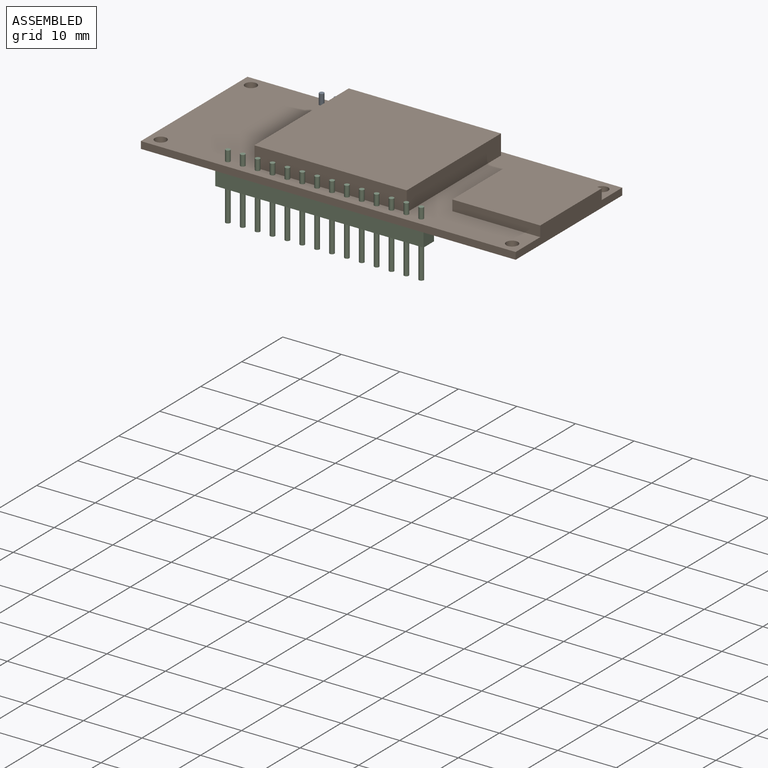
[diagram: assembled view]
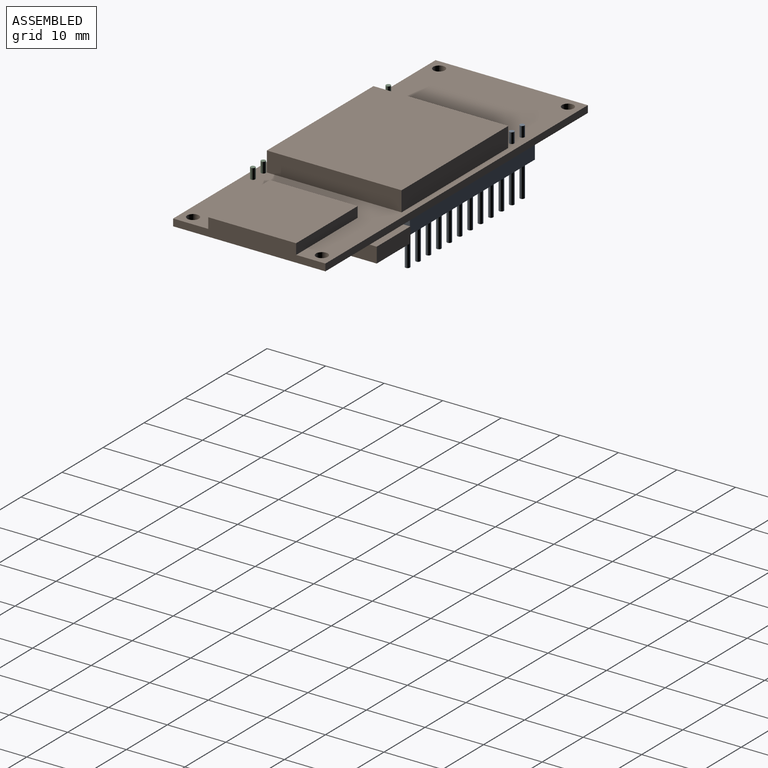
[diagram: assembled view, second angle]
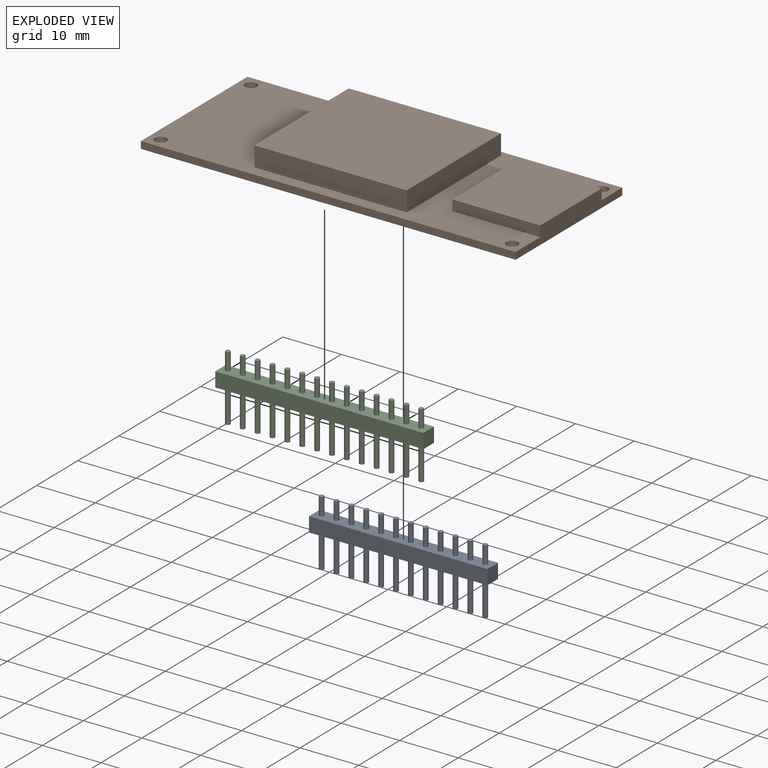
[diagram: exploded view]
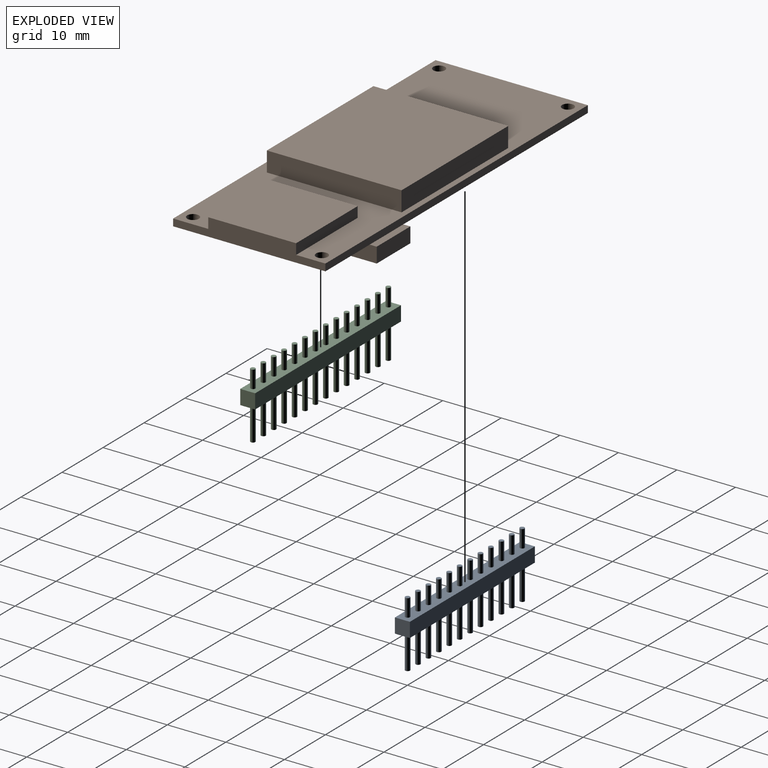
[diagram: exploded view, second angle]
ASSEMBLY  parts=3 mates=2
PART A: 54 faces, bbox 30.5x2.6x11.3 mm
  f0: plane 30.49x2.5mm, normal (0,1,0), area 76.2mm2, adj f1,f3,f4,f49
  f1: plane 2.55x2.5mm, normal (-1,0,0), area 6.4mm2, adj f0,f2,f3,f4
  f2: plane 30.49x2.5mm, normal (0,-1,0), area 76.2mm2, adj f1,f3,f4,f49
  f3: plane 30.49x2.55mm, normal (0,0,-1), area 71.7mm2, adj f0,f1,f2,f7,f11,f15,f19,f23
  f4: plane 30.49x2.55mm, normal (0,0,1), area 71.7mm2, adj f0,f1,f2,f6,f10,f14,f18,f22
  f5: plane 0.8x0.8mm, normal (0,0,1), area 0.5mm2, adj f6
  f6: cylinder r=0.4mm len=3mm, axis (0,0,-1), area 7.5mm2, adj f4,f5
  f7: cylinder r=0.4mm len=5.75mm, axis (0,0,-1), area 14.5mm2, adj f3,f8
  f8: plane 0.8x0.8mm, normal (0,0,-1), area 0.5mm2, adj f7
  f9: plane 0.8x0.8mm, normal (0,0,1), area 0.5mm2, adj f10
  f10: cylinder r=0.4mm len=3mm, axis (0,0,-1), area 7.5mm2, adj f4,f9
  f11: cylinder r=0.4mm len=5.75mm, axis (0,0,-1), area 14.5mm2, adj f3,f12
  f12: plane 0.8x0.8mm, normal (0,0,-1), area 0.5mm2, adj f11
  f13: plane 0.8x0.8mm, normal (0,0,1), area 0.5mm2, adj f14
  f14: cylinder r=0.4mm len=3mm, axis (0,0,-1), area 7.5mm2, adj f4,f13
  f15: cylinder r=0.4mm len=5.75mm, axis (0,0,-1), area 14.5mm2, adj f3,f16
  f16: plane 0.8x0.8mm, normal (0,0,-1), area 0.5mm2, adj f15
  f17: plane 0.8x0.8mm, normal (0,0,1), area 0.5mm2, adj f18
  f18: cylinder r=0.4mm len=3mm, axis (0,0,-1), area 7.5mm2, adj f4,f17
  f19: cylinder r=0.4mm len=5.75mm, axis (0,0,-1), area 14.5mm2, adj f3,f20
  f20: plane 0.8x0.8mm, normal (0,0,-1), area 0.5mm2, adj f19
  f21: plane 0.8x0.8mm, normal (0,0,1), area 0.5mm2, adj f22
  f22: cylinder r=0.4mm len=3mm, axis (0,0,-1), area 7.5mm2, adj f4,f21
  f23: cylinder r=0.4mm len=5.75mm, axis (0,0,-1), area 14.5mm2, adj f3,f24
  f24: plane 0.8x0.8mm, normal (0,0,-1), area 0.5mm2, adj f23
  f25: plane 0.8x0.8mm, normal (0,0,1), area 0.5mm2, adj f26
  f26: cylinder r=0.4mm len=3mm, axis (0,0,-1), area 7.5mm2, adj f4,f25
  f27: cylinder r=0.4mm len=5.75mm, axis (0,0,-1), area 14.5mm2, adj f3,f28
  f28: plane 0.8x0.8mm, normal (0,0,-1), area 0.5mm2, adj f27
  f29: plane 0.8x0.8mm, normal (0,0,1), area 0.5mm2, adj f30
  f30: cylinder r=0.4mm len=3mm, axis (0,0,-1), area 7.5mm2, adj f4,f29
  f31: cylinder r=0.4mm len=5.75mm, axis (0,0,-1), area 14.5mm2, adj f3,f32
  f32: plane 0.8x0.8mm, normal (0,0,-1), area 0.5mm2, adj f31
  f33: plane 0.8x0.8mm, normal (0,0,1), area 0.5mm2, adj f34
  f34: cylinder r=0.4mm len=3mm, axis (0,0,-1), area 7.5mm2, adj f4,f33
  f35: cylinder r=0.4mm len=5.75mm, axis (0,0,-1), area 14.5mm2, adj f3,f36
  f36: plane 0.8x0.8mm, normal (0,0,-1), area 0.5mm2, adj f35
  f37: plane 0.8x0.8mm, normal (0,0,1), area 0.5mm2, adj f38
  f38: cylinder r=0.4mm len=3mm, axis (0,0,-1), area 7.5mm2, adj f4,f37
  f39: cylinder r=0.4mm len=5.75mm, axis (0,0,-1), area 14.5mm2, adj f3,f40
  f40: plane 0.8x0.8mm, normal (0,0,-1), area 0.5mm2, adj f39
  f41: plane 0.8x0.8mm, normal (0,0,1), area 0.5mm2, adj f42
  f42: cylinder r=0.4mm len=3mm, axis (0,0,-1), area 7.5mm2, adj f4,f41
  f43: cylinder r=0.4mm len=5.75mm, axis (0,0,-1), area 14.5mm2, adj f3,f44
  f44: plane 0.8x0.8mm, normal (0,0,-1), area 0.5mm2, adj f43
  f45: plane 0.8x0.8mm, normal (0,0,1), area 0.5mm2, adj f46
  f46: cylinder r=0.4mm len=3mm, axis (0,0,-1), area 7.5mm2, adj f4,f45
  f47: cylinder r=0.4mm len=5.75mm, axis (0,0,-1), area 14.5mm2, adj f3,f48
  f48: plane 0.8x0.8mm, normal (0,0,-1), area 0.5mm2, adj f47
  f49: plane 2.55x2.5mm, normal (1,0,0), area 6.4mm2, adj f0,f2,f3,f4
  f50: plane 0.8x0.8mm, normal (0,0,1), area 0.5mm2, adj f51
  f51: cylinder r=0.4mm len=3mm, axis (0,0,-1), area 7.5mm2, adj f4,f50
  f52: cylinder r=0.4mm len=5.75mm, axis (0,0,-1), area 14.5mm2, adj f3,f53
  f53: plane 0.8x0.8mm, normal (0,0,-1), area 0.5mm2, adj f52
PART B: 30 faces, bbox 64x27.2x7.2 mm
  f0: plane 64x1.2mm, normal (0,-1,0), area 76.8mm2, adj f1,f3,f4,f5
  f1: plane 26x3mm, normal (1,0,0), area 58.2mm2, adj f0,f2,f4,f5,f6,f7,f9
  f2: plane 64x1.2mm, normal (0,1,0), area 76.8mm2, adj f1,f3,f4,f5,f20
  f3: plane 26x1.2mm, normal (-1,0,0), area 31.2mm2, adj f0,f2,f4,f5
  f4: plane 64x26mm, normal (0,0,-1), area 1327.4mm2, adj f0,f1,f2,f3,f15,f16,f17,f21
  f5: plane 64x26mm, normal (0,0,1), area 828.4mm2, adj f0,f1,f2,f3,f6,f7,f8,f10
  f6: plane 15x1.8mm, normal (0,-1,0), area 27mm2, adj f1,f5,f8,f9
  f7: plane 15x1.8mm, normal (0,1,0), area 27mm2, adj f1,f5,f8,f9
  f8: plane 15x1.8mm, normal (-1,0,0), area 27mm2, adj f5,f6,f7,f9
  f9: plane 15x15mm, normal (0,0,1), area 225mm2, adj f1,f6,f7,f8
  f10: plane 26x3.4mm, normal (0,1,0), area 88.4mm2, adj f5,f11,f13,f14
  f11: plane 23x3.4mm, normal (-1,0,0), area 78.2mm2, adj f5,f10,f12,f14
  f12: plane 26x3.4mm, normal (0,-1,0), area 88.4mm2, adj f5,f11,f13,f14
  f13: plane 23x3.4mm, normal (1,0,0), area 78.2mm2, adj f5,f10,f12,f14
  f14: plane 26x23mm, normal (0,0,1), area 598mm2, adj f10,f11,f12,f13
  f15: plane 5.6x2.6mm, normal (1,0,0), area 14.6mm2, adj f4,f16,f18,f19,f20
  f16: plane 8.2x2.6mm, normal (0,-1,0), area 21.3mm2, adj f4,f15,f17,f19
  f17: plane 5.6x2.6mm, normal (-1,0,0), area 14.6mm2, adj f4,f16,f18,f19,f20
  f18: plane 8.2x2.6mm, normal (0,1,0), area 21.3mm2, adj f15,f17,f19,f20
  f19: plane 8.2x5.6mm, normal (0,0,-1), area 45.9mm2, adj f15,f16,f17,f18
  f20: plane 8.2x1.2mm, normal (0,0,1), area 9.8mm2, adj f2,f15,f17,f18
  f21: plane 18x2.4mm, normal (0,-1,0), area 43.2mm2, adj f4,f22,f24,f25
  f22: plane 16x2.4mm, normal (-1,0,0), area 38.4mm2, adj f4,f21,f23,f25
  f23: plane 18x2.4mm, normal (0,1,0), area 43.2mm2, adj f4,f22,f24,f25
  f24: plane 16x2.4mm, normal (1,0,0), area 38.4mm2, adj f4,f21,f23,f25
  f25: plane 18x16mm, normal (0,0,-1), area 288mm2, adj f21,f22,f23,f24
  f26: cylinder r=1mm len=2mm, axis (0,0,-1), area 7.5mm2, adj f4,f5
  f27: cylinder r=1mm len=2mm, axis (0,0,-1), area 7.5mm2, adj f4,f5
  f28: cylinder r=1mm len=2mm, axis (0,0,-1), area 7.5mm2, adj f4,f5
  f29: cylinder r=1mm len=2mm, axis (0,0,-1), area 7.5mm2, adj f4,f5
PART C: 62 faces, bbox 35.6x2.6x11.3 mm
  f0: plane 35.57x2.5mm, normal (0,1,0), area 88.9mm2, adj f1,f3,f4,f57
  f1: plane 2.55x2.5mm, normal (-1,0,0), area 6.4mm2, adj f0,f2,f3,f4
  f2: plane 35.57x2.5mm, normal (0,-1,0), area 88.9mm2, adj f1,f3,f4,f57
  f3: plane 35.57x2.55mm, normal (0,0,-1), area 83.7mm2, adj f0,f1,f2,f7,f11,f15,f19,f23
  f4: plane 35.57x2.55mm, normal (0,0,1), area 83.7mm2, adj f0,f1,f2,f6,f10,f14,f18,f22
  f5: plane 0.8x0.8mm, normal (0,0,1), area 0.5mm2, adj f6
  f6: cylinder r=0.4mm len=3mm, axis (0,0,-1), area 7.5mm2, adj f4,f5
  f7: cylinder r=0.4mm len=5.75mm, axis (0,0,-1), area 14.5mm2, adj f3,f8
  f8: plane 0.8x0.8mm, normal (0,0,-1), area 0.5mm2, adj f7
  f9: plane 0.8x0.8mm, normal (0,0,1), area 0.5mm2, adj f10
  f10: cylinder r=0.4mm len=3mm, axis (0,0,-1), area 7.5mm2, adj f4,f9
  f11: cylinder r=0.4mm len=5.75mm, axis (0,0,-1), area 14.5mm2, adj f3,f12
  f12: plane 0.8x0.8mm, normal (0,0,-1), area 0.5mm2, adj f11
  f13: plane 0.8x0.8mm, normal (0,0,1), area 0.5mm2, adj f14
  f14: cylinder r=0.4mm len=3mm, axis (0,0,-1), area 7.5mm2, adj f4,f13
  f15: cylinder r=0.4mm len=5.75mm, axis (0,0,-1), area 14.5mm2, adj f3,f16
  f16: plane 0.8x0.8mm, normal (0,0,-1), area 0.5mm2, adj f15
  f17: plane 0.8x0.8mm, normal (0,0,1), area 0.5mm2, adj f18
  f18: cylinder r=0.4mm len=3mm, axis (0,0,-1), area 7.5mm2, adj f4,f17
  f19: cylinder r=0.4mm len=5.75mm, axis (0,0,-1), area 14.5mm2, adj f3,f20
  f20: plane 0.8x0.8mm, normal (0,0,-1), area 0.5mm2, adj f19
  f21: plane 0.8x0.8mm, normal (0,0,1), area 0.5mm2, adj f22
  f22: cylinder r=0.4mm len=3mm, axis (0,0,-1), area 7.5mm2, adj f4,f21
  f23: cylinder r=0.4mm len=5.75mm, axis (0,0,-1), area 14.5mm2, adj f3,f24
  f24: plane 0.8x0.8mm, normal (0,0,-1), area 0.5mm2, adj f23
  f25: plane 0.8x0.8mm, normal (0,0,1), area 0.5mm2, adj f26
  f26: cylinder r=0.4mm len=3mm, axis (0,0,-1), area 7.5mm2, adj f4,f25
  f27: cylinder r=0.4mm len=5.75mm, axis (0,0,-1), area 14.5mm2, adj f3,f28
  f28: plane 0.8x0.8mm, normal (0,0,-1), area 0.5mm2, adj f27
  f29: plane 0.8x0.8mm, normal (0,0,1), area 0.5mm2, adj f30
  f30: cylinder r=0.4mm len=3mm, axis (0,0,-1), area 7.5mm2, adj f4,f29
  f31: cylinder r=0.4mm len=5.75mm, axis (0,0,-1), area 14.5mm2, adj f3,f32
  f32: plane 0.8x0.8mm, normal (0,0,-1), area 0.5mm2, adj f31
  f33: plane 0.8x0.8mm, normal (0,0,1), area 0.5mm2, adj f34
  f34: cylinder r=0.4mm len=3mm, axis (0,0,-1), area 7.5mm2, adj f4,f33
  f35: cylinder r=0.4mm len=5.75mm, axis (0,0,-1), area 14.5mm2, adj f3,f36
  f36: plane 0.8x0.8mm, normal (0,0,-1), area 0.5mm2, adj f35
  f37: plane 0.8x0.8mm, normal (0,0,1), area 0.5mm2, adj f38
  f38: cylinder r=0.4mm len=3mm, axis (0,0,-1), area 7.5mm2, adj f4,f37
  f39: cylinder r=0.4mm len=5.75mm, axis (0,0,-1), area 14.5mm2, adj f3,f40
  f40: plane 0.8x0.8mm, normal (0,0,-1), area 0.5mm2, adj f39
  f41: plane 0.8x0.8mm, normal (0,0,1), area 0.5mm2, adj f42
  f42: cylinder r=0.4mm len=3mm, axis (0,0,-1), area 7.5mm2, adj f4,f41
  f43: cylinder r=0.4mm len=5.75mm, axis (0,0,-1), area 14.5mm2, adj f3,f44
  f44: plane 0.8x0.8mm, normal (0,0,-1), area 0.5mm2, adj f43
  f45: plane 0.8x0.8mm, normal (0,0,1), area 0.5mm2, adj f46
  f46: cylinder r=0.4mm len=3mm, axis (0,0,-1), area 7.5mm2, adj f4,f45
  f47: cylinder r=0.4mm len=5.75mm, axis (0,0,-1), area 14.5mm2, adj f3,f48
  f48: plane 0.8x0.8mm, normal (0,0,-1), area 0.5mm2, adj f47
  f49: plane 0.8x0.8mm, normal (0,0,1), area 0.5mm2, adj f50
  f50: cylinder r=0.4mm len=3mm, axis (0,0,-1), area 7.5mm2, adj f4,f49
  f51: cylinder r=0.4mm len=5.75mm, axis (0,0,-1), area 14.5mm2, adj f3,f52
  f52: plane 0.8x0.8mm, normal (0,0,-1), area 0.5mm2, adj f51
  f53: plane 0.8x0.8mm, normal (0,0,1), area 0.5mm2, adj f54
  f54: cylinder r=0.4mm len=3mm, axis (0,0,-1), area 7.5mm2, adj f4,f53
  f55: cylinder r=0.4mm len=5.75mm, axis (0,0,-1), area 14.5mm2, adj f3,f56
  f56: plane 0.8x0.8mm, normal (0,0,-1), area 0.5mm2, adj f55
  f57: plane 2.55x2.5mm, normal (1,0,0), area 6.4mm2, adj f0,f2,f3,f4
  f58: plane 0.8x0.8mm, normal (0,0,1), area 0.5mm2, adj f59
  f59: cylinder r=0.4mm len=3mm, axis (0,0,-1), area 7.5mm2, adj f4,f58
  f60: cylinder r=0.4mm len=5.75mm, axis (0,0,-1), area 14.5mm2, adj f3,f61
  f61: plane 0.8x0.8mm, normal (0,0,-1), area 0.5mm2, adj f60
PLACE A t=(-50.23,-1.57,-1.2)mm
PLACE B at identity fixed
PLACE C t=(-50.23,-24.43,-1.2)mm
MATE fastened C.f6 <-> B.f4  axis (0,0,1) through (-50.23,-24.43,-1.2)mm
MATE fastened A.f6 <-> B.f4  axis (0,0,1) through (-50.23,-1.57,-1.2)mm
